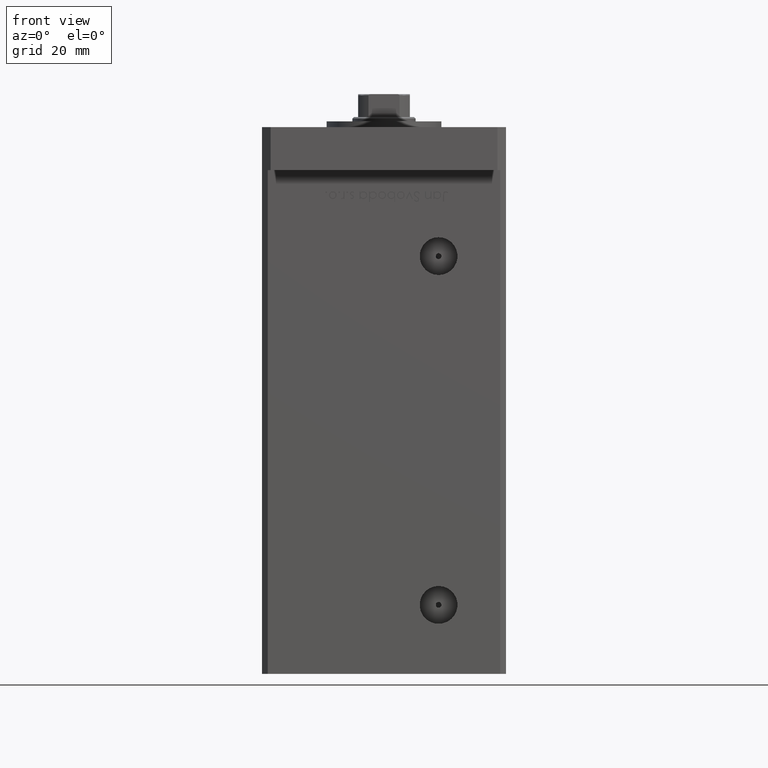
[diagram: clean part render]
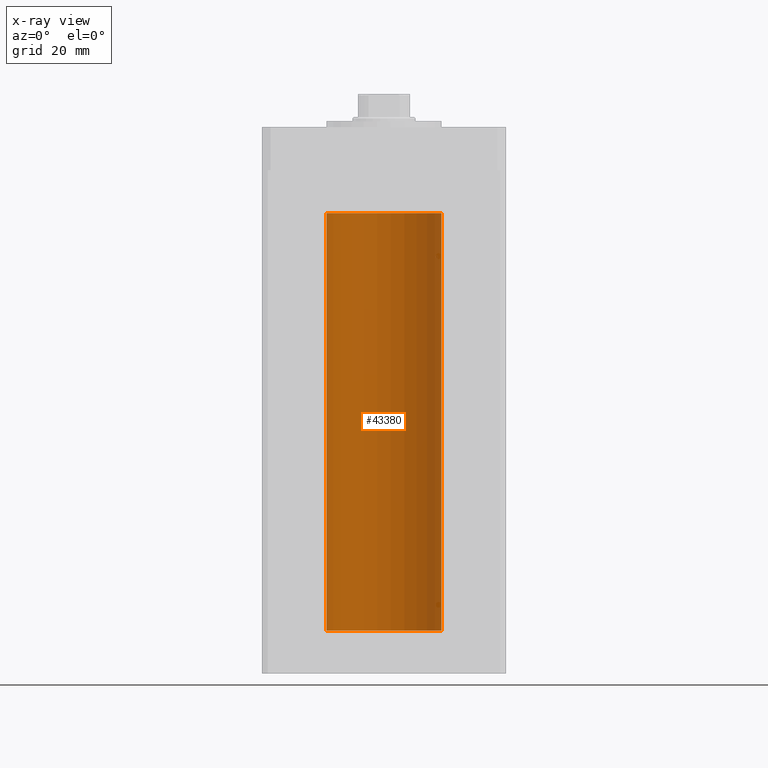
[diagram: x-ray — body ghosted, one internal face saturated and labeled with its STEP entity id]
A machine part, front view, then the same camera in x-ray: the body is ghosted and one INTERNAL B-rep face — a face not visible from any outside direction — is saturated and labeled: STEP entity #43380.
In plain terms, the highlighted cylindrical surface (partial cylindrical patch) has radius 20 mm, axis along (-0, -0, -1).
Its self-contained STEP definition (entity closure, byte-faithful):
#966 = CARTESIAN_POINT ( 'NONE',  ( -20.00000000000000000, 0.000000000000000000, 0.000000000000000000 ) ) ;
#1459 = ORIENTED_EDGE ( 'NONE', *, *, #1925, .T. ) ;
#1697 = CARTESIAN_POINT ( 'NONE',  ( -20.00000000000000000, 0.000000000000000000, 145.5000000000000000 ) ) ;
#1925 = EDGE_CURVE ( 'NONE', #25179, #29188, #25871, .T. ) ;
#6858 = LINE ( 'NONE', #23425, #32039 ) ;
#8356 = CYLINDRICAL_SURFACE ( 'NONE', #41686, 20.00000000000000000 ) ;
#8669 = AXIS2_PLACEMENT_3D ( 'NONE', #49627, #48823, #19819 ) ;
#10050 = DIRECTION ( 'NONE',  ( -0.000000000000000000, 0.000000000000000000, 1.000000000000000000 ) ) ;
#12854 = DIRECTION ( 'NONE',  ( 1.000000000000000000, 0.000000000000000000, 0.000000000000000000 ) ) ;
#15111 = EDGE_LOOP ( 'NONE', ( #47070, #39134, #1459, #15805 ) ) ;
#15805 = ORIENTED_EDGE ( 'NONE', *, *, #39380, .F. ) ;
#17233 = CIRCLE ( 'NONE', #24157, 20.00000000000000000 ) ;
#18951 = CARTESIAN_POINT ( 'NONE',  ( -20.00000000000000000, 0.000000000000000000, 145.5000000000000000 ) ) ;
#19819 = DIRECTION ( 'NONE',  ( 1.000000000000000000, 0.000000000000000000, 0.000000000000000000 ) ) ;
#20187 = CARTESIAN_POINT ( 'NONE',  ( 20.00000000000000000, 2.449293598294706513E-15, 0.000000000000000000 ) ) ;
#22536 = CARTESIAN_POINT ( 'NONE',  ( 0.000000000000000000, 0.000000000000000000, 145.5000000000000000 ) ) ;
#23425 = CARTESIAN_POINT ( 'NONE',  ( 20.00000000000000000, 2.449293598294706513E-15, 145.5000000000000000 ) ) ;
#24157 = AXIS2_PLACEMENT_3D ( 'NONE', #22536, #10050, #12854 ) ;
#24911 = DIRECTION ( 'NONE',  ( -1.000000000000000000, 0.000000000000000000, 0.000000000000000000 ) ) ;
#25090 = CARTESIAN_POINT ( 'NONE',  ( 20.00000000000000000, 2.449293598294706513E-15, 145.5000000000000000 ) ) ;
#25179 = VERTEX_POINT ( 'NONE', #18951 ) ;
#25871 = LINE ( 'NONE', #1697, #43011 ) ;
#27215 = DIRECTION ( 'NONE',  ( -0.000000000000000000, -0.000000000000000000, -1.000000000000000000 ) ) ;
#28181 = CARTESIAN_POINT ( 'NONE',  ( 0.000000000000000000, 0.000000000000000000, 145.5000000000000000 ) ) ;
#28982 = FACE_OUTER_BOUND ( 'NONE', #15111, .T. ) ;
#29188 = VERTEX_POINT ( 'NONE', #966 ) ;
#31820 = EDGE_CURVE ( 'NONE', #37508, #25179, #17233, .T. ) ;
#32039 = VECTOR ( 'NONE', #27215, 1000.000000000000000 ) ;
#34253 = DIRECTION ( 'NONE',  ( -0.000000000000000000, -0.000000000000000000, -1.000000000000000000 ) ) ;
#36554 = DIRECTION ( 'NONE',  ( -0.000000000000000000, -0.000000000000000000, -1.000000000000000000 ) ) ;
#37508 = VERTEX_POINT ( 'NONE', #25090 ) ;
#38883 = EDGE_CURVE ( 'NONE', #37508, #51034, #6858, .T. ) ;
#39134 = ORIENTED_EDGE ( 'NONE', *, *, #31820, .T. ) ;
#39380 = EDGE_CURVE ( 'NONE', #51034, #29188, #50243, .T. ) ;
#41686 = AXIS2_PLACEMENT_3D ( 'NONE', #28181, #36554, #24911 ) ;
#43011 = VECTOR ( 'NONE', #34253, 1000.000000000000000 ) ;
#43380 = ADVANCED_FACE ( 'NONE', ( #28982 ), #8356, .F. ) ;
#47070 = ORIENTED_EDGE ( 'NONE', *, *, #38883, .F. ) ;
#48823 = DIRECTION ( 'NONE',  ( -0.000000000000000000, 0.000000000000000000, 1.000000000000000000 ) ) ;
#49627 = CARTESIAN_POINT ( 'NONE',  ( 0.000000000000000000, 0.000000000000000000, 0.000000000000000000 ) ) ;
#50243 = CIRCLE ( 'NONE', #8669, 20.00000000000000000 ) ;
#51034 = VERTEX_POINT ( 'NONE', #20187 ) ;